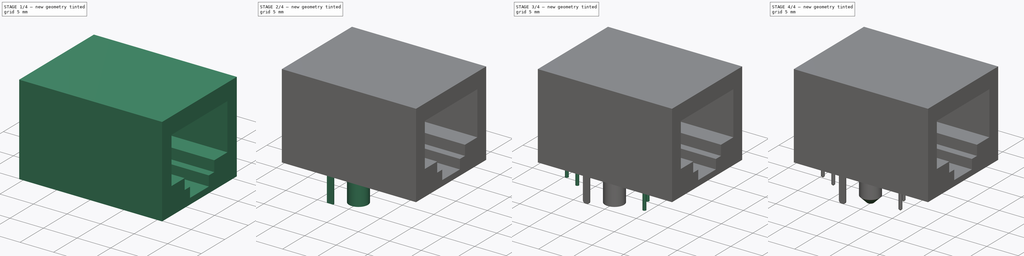
[diagram: build sequence overview — one tinted view per stage of 4, left to right]
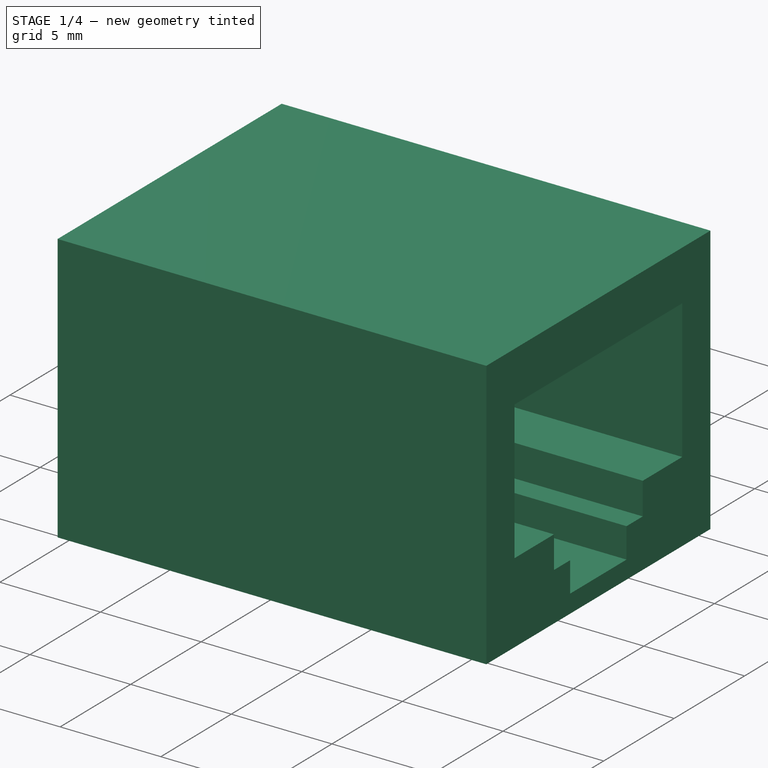
[diagram: stage 1 of 4 — iso view after this stage's code; geometry added in this stage tinted green]
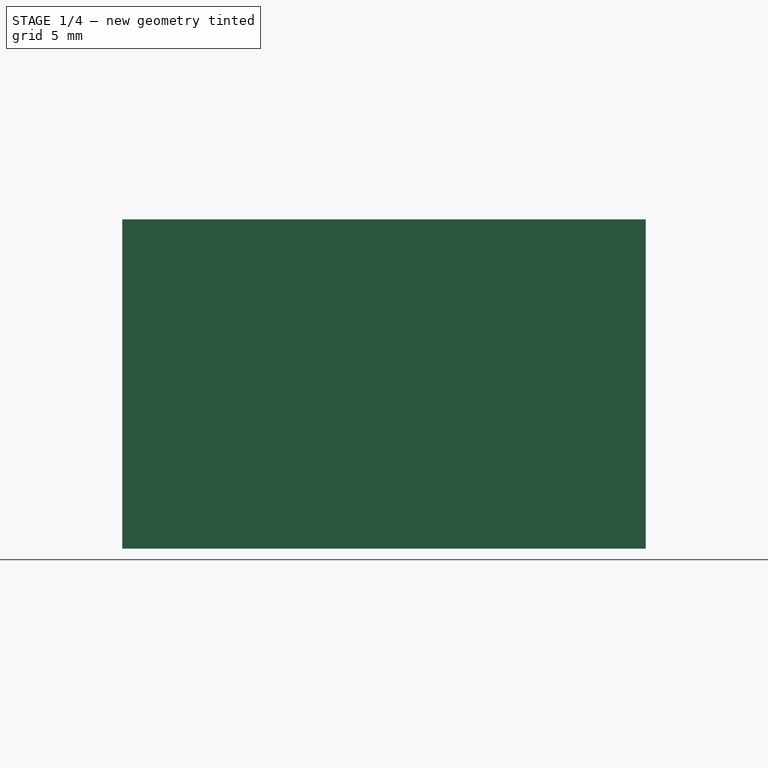
[diagram: stage 1 of 4 — front view after this stage's code; geometry added in this stage tinted green]
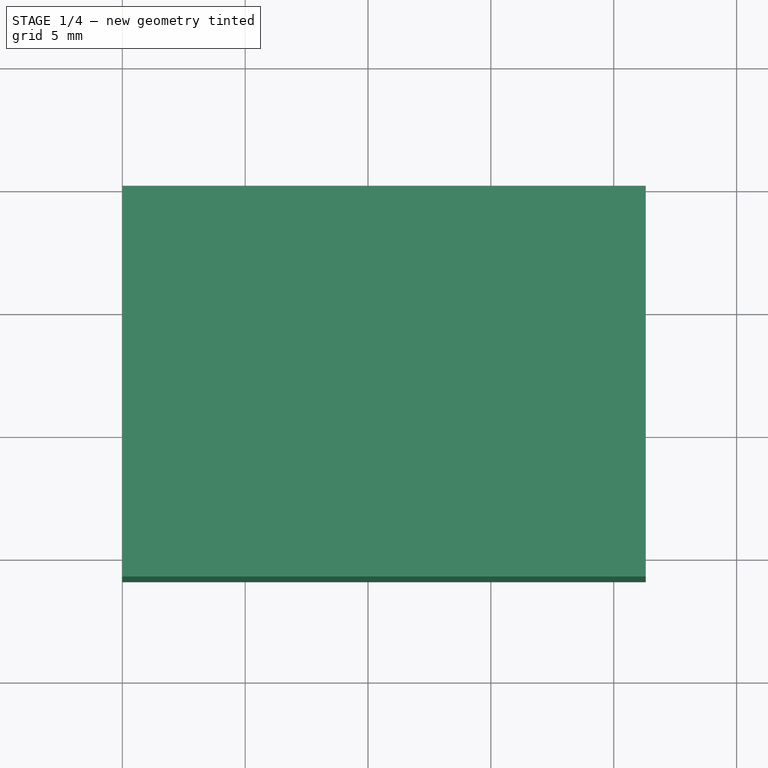
[diagram: stage 1 of 4 — top view after this stage's code; geometry added in this stage tinted green]
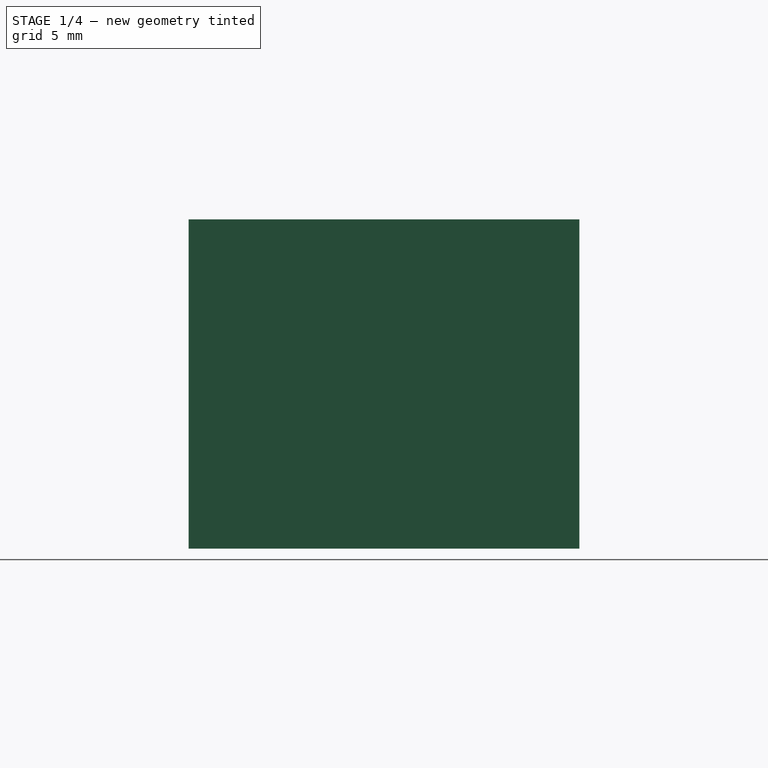
[diagram: stage 1 of 4 — right view after this stage's code; geometry added in this stage tinted green]
FCSTD DOCUMENT  (FreeCAD 0.14R3702 (Git))
Label: rj45-ethernet-PCB-with-leds
License: CC-BY 3.0
LicenseURL: http://creativecommons.org/licenses/by/3.0/
objects: Sketcher::SketchObject×7, PartDesign::Pad×6, PartDesign::Chamfer×2, PartDesign::Pocket×1, PartDesign::Fillet×1
note: 24 computed .brp shape members not serialized (recipe doc carries the construction recipe); baked Part::Feature solids carry a one-line shape summary decoded from their .brp

FEATURE [Sketcher::SketchObject] Sketch
  sketch-geometry (4):
    g0: LineSegment StartX=0 StartY=0 StartZ=0 EndX=21.3 EndY=0 EndZ=0
    g1: LineSegment StartX=21.3 StartY=0 StartZ=0 EndX=21.3 EndY=-15.9 EndZ=0
    g2: LineSegment StartX=21.3 StartY=-15.9 StartZ=0 EndX=0 EndY=-15.9 EndZ=0
    g3: LineSegment StartX=0 StartY=-15.9 StartZ=0 EndX=0 EndY=0 EndZ=0
  constraints (11):
    c: Coincident(g0,g1)
    c: Coincident(g1,g2)
    c: Coincident(g2,g3)
    c: Coincident(g3,g0)
    c: Horizontal(g0)
    c: Horizontal(g2)
    c: Vertical(g1)
    c: Vertical(g3)
    c: Coincident(g0,g-1)
    c: DistanceX(g-1,g0) = 21.3
    c: DistanceY(g-1,g2) = -15.9
FEATURE [PartDesign::Pad] Pad  label="Body"
  Length = 13.4
  Length2 = 100
  Sketch = -> Sketch
  Type = 0
FEATURE [Sketcher::SketchObject] Sketch001
  ExternalGeometry = -> [Pad]
  Placement = pos=(21.3,0,0) rot=(0.57735,0.57735,0.57735;2.0944rad)
  Support = -> Pad [Face2]
  sketch-geometry (14):
    g0: LineSegment StartX=-13.9 StartY=10.9 StartZ=0 EndX=-2 EndY=10.9 EndZ=0
    g1: LineSegment StartX=-2 StartY=10.9 StartZ=0 EndX=-2 EndY=4 EndZ=0
    g2: LineSegment StartX=-2 StartY=4 StartZ=0 EndX=-4.8 EndY=4 EndZ=0
    g3: LineSegment StartX=-4.8 StartY=4 StartZ=0 EndX=-4.8 EndY=2.4 EndZ=0
    g4: LineSegment StartX=-4.8 StartY=2.4 StartZ=0 EndX=-5.95 EndY=2.4 EndZ=0
    g5: LineSegment StartX=-5.95 StartY=2.4 StartZ=0 EndX=-5.95 EndY=0.9 EndZ=0
    g6: LineSegment StartX=-5.95 StartY=0.9 StartZ=0 EndX=-9.95 EndY=0.9 EndZ=0
    g7: LineSegment StartX=-9.95 StartY=0.9 StartZ=0 EndX=-9.95 EndY=2.4 EndZ=0
    g8: LineSegment StartX=-9.95 StartY=2.4 StartZ=0 EndX=-11.1 EndY=2.4 EndZ=0
    g9: LineSegment StartX=-11.1 StartY=2.4 StartZ=0 EndX=-11.1 EndY=4 EndZ=0
    g10: LineSegment StartX=-11.1 StartY=4 StartZ=0 EndX=-13.9 EndY=4 EndZ=0
    g11: LineSegment StartX=-13.9 StartY=4 StartZ=0 EndX=-13.9 EndY=10.9 EndZ=0
    g12: LineSegment [constr] StartX=-2 StartY=10.9 StartZ=0 EndX=0 EndY=13.4 EndZ=0
    g13: LineSegment [constr] StartX=-13.9 StartY=10.9 StartZ=0 EndX=-15.9 EndY=13.4 EndZ=0
  constraints (40):
    c: Horizontal(g0)
    c: Coincident(g0,g1)
    c: Vertical(g1)
    c: Coincident(g1,g2)
    c: Horizontal(g2)
    c: Coincident(g2,g3)
    c: Coincident(g3,g4)
    c: Coincident(g4,g5)
    c: Vertical(g5)
    c: Coincident(g5,g6)
    c: Horizontal(g6)
    c: Coincident(g6,g7)
    c: Vertical(g7)
    c: Coincident(g7,g8)
    c: Coincident(g8,g9)
    c: Coincident(g9,g10)
    c: Horizontal(g10)
    c: Coincident(g10,g11)
    c: Coincident(g11,g0)
    c: Vertical(g11)
    c: Equal(g11,g1)
    c: Equal(g10,g2)
    c: Equal(g9,g3)
    c: Vertical(g3)
    c: Vertical(g9)
    c: Equal(g8,g4)
    c: Horizontal(g4)
    c: Equal(g7,g5)
    c: DistanceY(g0,g10) = -6.9
    c: DistanceX(g0,g0) = 11.9
    c: DistanceX(g2,g9) = -6.3
    c: DistanceX(g6,g5) = 4
    c: DistanceY(g3,g0) = 8.5
    c: DistanceY(g6,g0) = 10
    c: DistanceY(g0,g-3) = 2.5
    c: Coincident(g12,g0)
    c: Coincident(g12,g-3)
    c: Coincident(g13,g0)
    c: Coincident(g13,g-3)
    c: Equal(g12,g13)
FEATURE [PartDesign::Pocket] Pocket  label="inside"
  Length = 11.5
  Sketch = -> Sketch001
  Type = 0
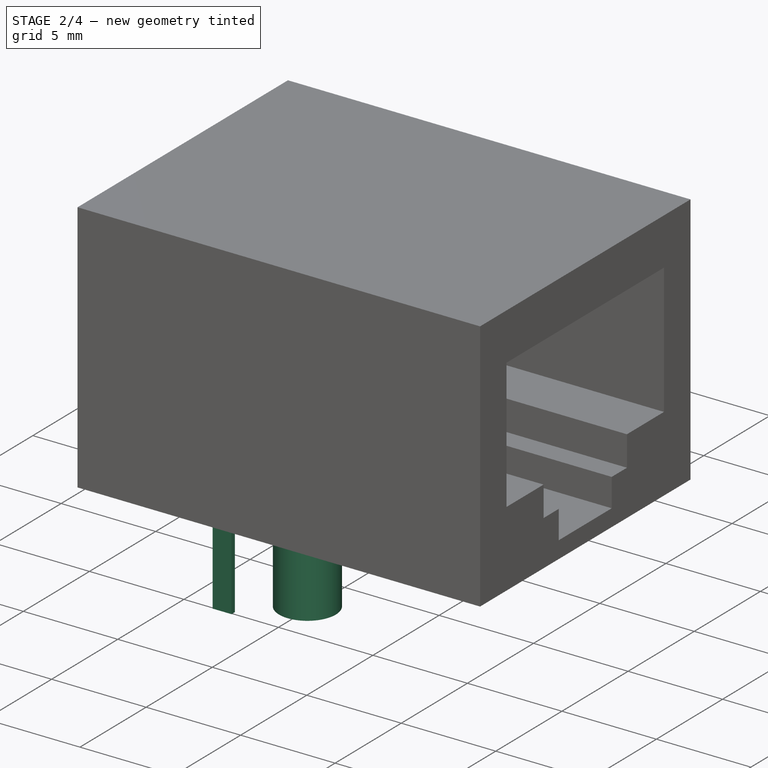
[diagram: stage 2 of 4 — iso view after this stage's code; geometry added in this stage tinted green]
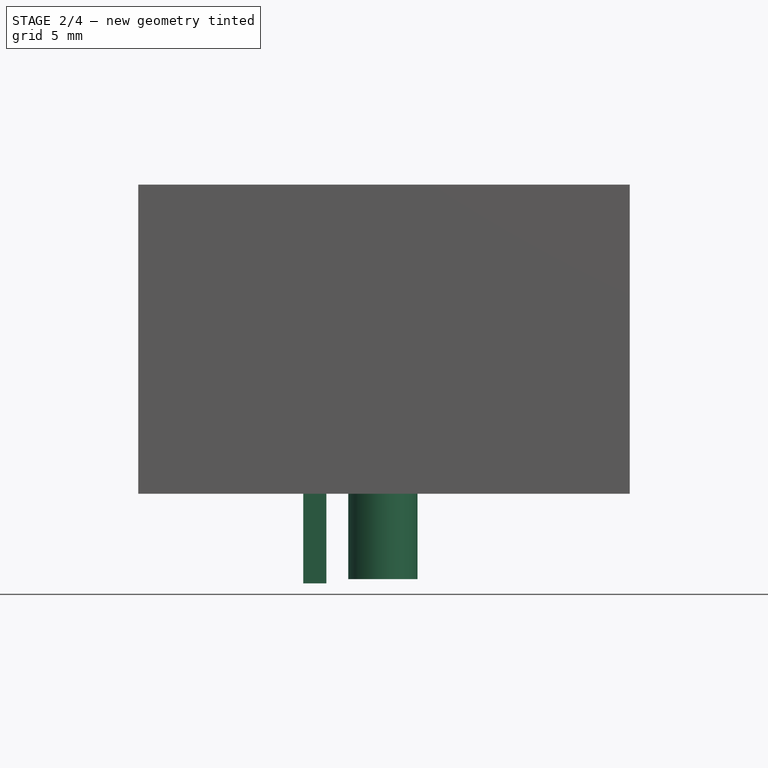
[diagram: stage 2 of 4 — front view after this stage's code; geometry added in this stage tinted green]
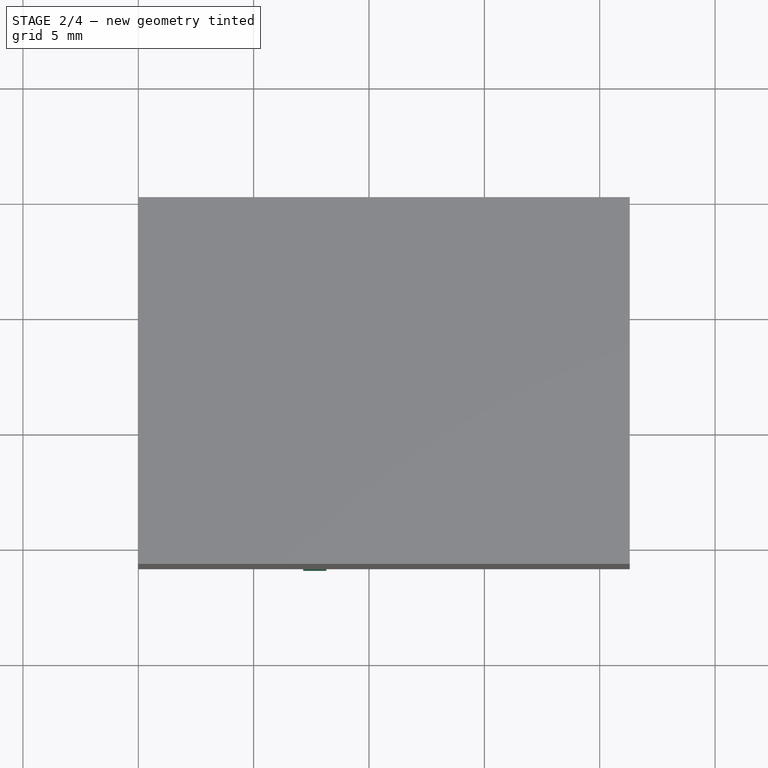
[diagram: stage 2 of 4 — top view after this stage's code; geometry added in this stage tinted green]
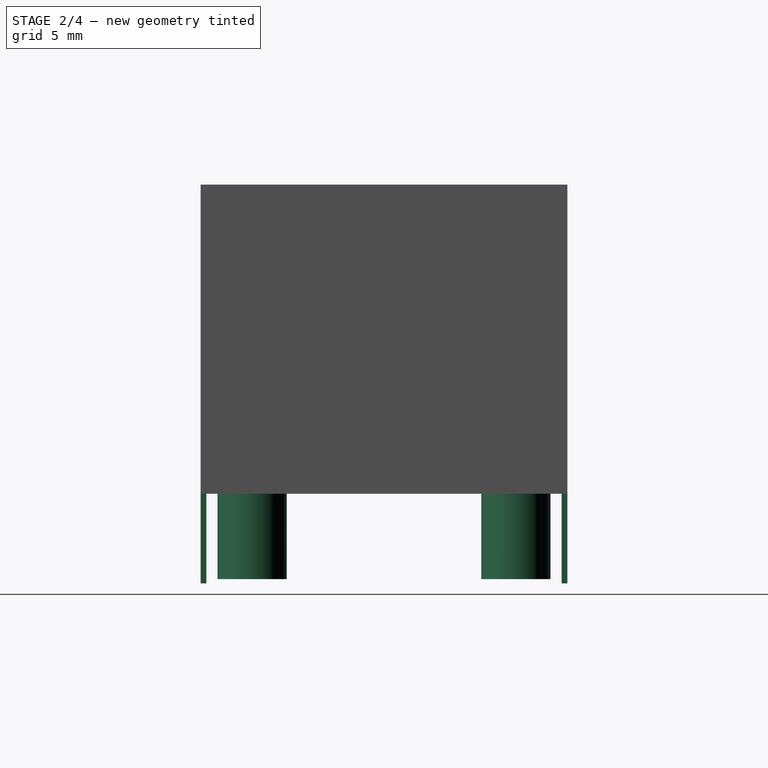
[diagram: stage 2 of 4 — right view after this stage's code; geometry added in this stage tinted green]
FEATURE [Sketcher::SketchObject] Sketch002
  ExternalGeometry = -> [Pocket]
  Placement = pos=(0,0,0) rot=(1,0,0;3.14159rad)
  Support = -> Pocket [Face4]
  sketch-geometry (2):
    g0: Circle CenterX=10.6 CenterY=13.665 CenterZ=0 NormalX=0 NormalY=0 NormalZ=1 Radius=1.5
    g1: Circle CenterX=10.6 CenterY=2.235 CenterZ=0 NormalX=0 NormalY=0 NormalZ=1 Radius=1.5
  constraints (6):
    c: Equal(g0,g1)
    c: Radius(g0) = 1.5
    c: DistanceY(g0,g1) = -11.43
    c: DistanceX(g0,g-3) = 10.7
    c: DistanceX(g1,g-3) = 10.7
    c: DistanceY(g0,g-3) = 2.235
FEATURE [PartDesign::Pad] Pad001
  Length = 3.7
  Length2 = 100
  Sketch = -> Sketch002
  Type = 0
FEATURE [Sketcher::SketchObject] Sketch003
  ExternalGeometry = -> [Pad001]
  Placement = pos=(0,-15.9,0) rot=(1,0,0;1.5708rad)
  Support = -> Pad001 [Face6]
  sketch-geometry (6):
    g0: LineSegment StartX=8.15 StartY=0 StartZ=0 EndX=7.15 EndY=0 EndZ=0
    g1: LineSegment StartX=7.15 StartY=0 StartZ=0 EndX=7.15 EndY=-3.88277 EndZ=0
    g2: LineSegment StartX=7.15 StartY=-3.88277 StartZ=0 EndX=8.15 EndY=-3.88277 EndZ=0
    g3: LineSegment StartX=8.15 StartY=-3.88277 StartZ=0 EndX=8.15 EndY=0 EndZ=0
    g4: LineSegment [constr] StartX=8.15 StartY=0 StartZ=0 EndX=7.15 EndY=-3.88277 EndZ=0
    g5: GeomPoint [constr] X=7.65 Y=-1.94139 Z=0
  constraints (15):
    c: Coincident(g0,g1)
    c: Coincident(g1,g2)
    c: Coincident(g2,g3)
    c: Coincident(g3,g0)
    c: Horizontal(g0)
    c: Horizontal(g2)
    c: Vertical(g1)
    c: Vertical(g3)
    c: PointOnObject(g0,g-1)
    c: Coincident(g4,g0)
    c: Coincident(g4,g1)
    c: PointOnObject(g5,g4)
    c: Symmetric(g0,g1,g5)
    c: DistanceX(g1,g2) = 1
    c: DistanceX(g-1,g5) = 7.65
FEATURE [PartDesign::Pad] Pad002
  Length = 0.25
  Length2 = 100
  Reversed = true
  Sketch = -> Sketch003
  Type = 0
FEATURE [Sketcher::SketchObject] Sketch004
  ExternalGeometry = -> [Pad002]
  Placement = pos=(0,0,0) rot=(0,0.707107,0.707107;3.14159rad)
  Support = -> Pad002 [Face1]
  sketch-geometry (4):
    g0: LineSegment StartX=-8.15 StartY=0 StartZ=0 EndX=-7.15 EndY=0 EndZ=0
    g1: LineSegment StartX=-7.15 StartY=0 StartZ=0 EndX=-7.15 EndY=-3.88277 EndZ=0
    g2: LineSegment StartX=-7.15 StartY=-3.88277 StartZ=0 EndX=-8.15 EndY=-3.88277 EndZ=0
    g3: LineSegment StartX=-8.15 StartY=-3.88277 StartZ=0 EndX=-8.15 EndY=0 EndZ=0
  constraints (10):
    c: Coincident(g0,g1)
    c: Coincident(g1,g2)
    c: Coincident(g2,g3)
    c: Coincident(g3,g0)
    c: Horizontal(g0)
    c: Horizontal(g2)
    c: Vertical(g1)
    c: Vertical(g3)
    c: Coincident(g1,g-3)
    c: DistanceX(g2,g1) = 1
FEATURE [PartDesign::Pad] Pad003
  Length = 0.25
  Length2 = 100
  Reversed = true
  Sketch = -> Sketch004
  Type = 0
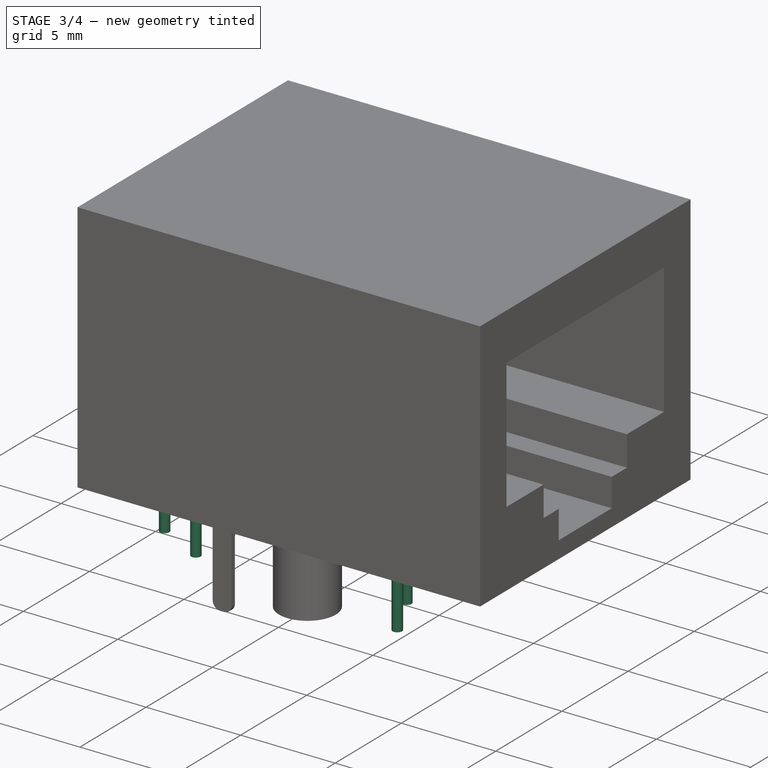
[diagram: stage 3 of 4 — iso view after this stage's code; geometry added in this stage tinted green]
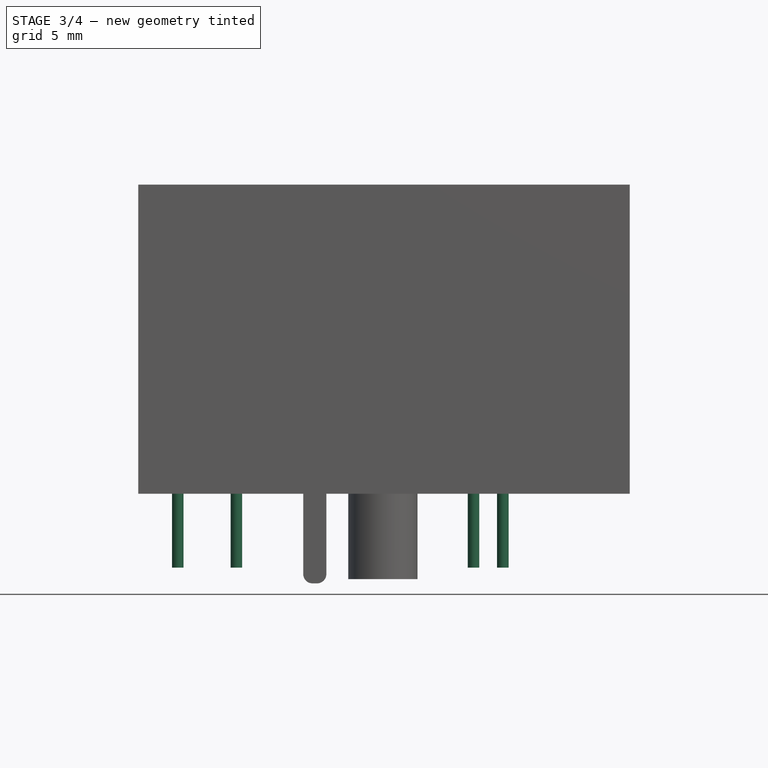
[diagram: stage 3 of 4 — front view after this stage's code; geometry added in this stage tinted green]
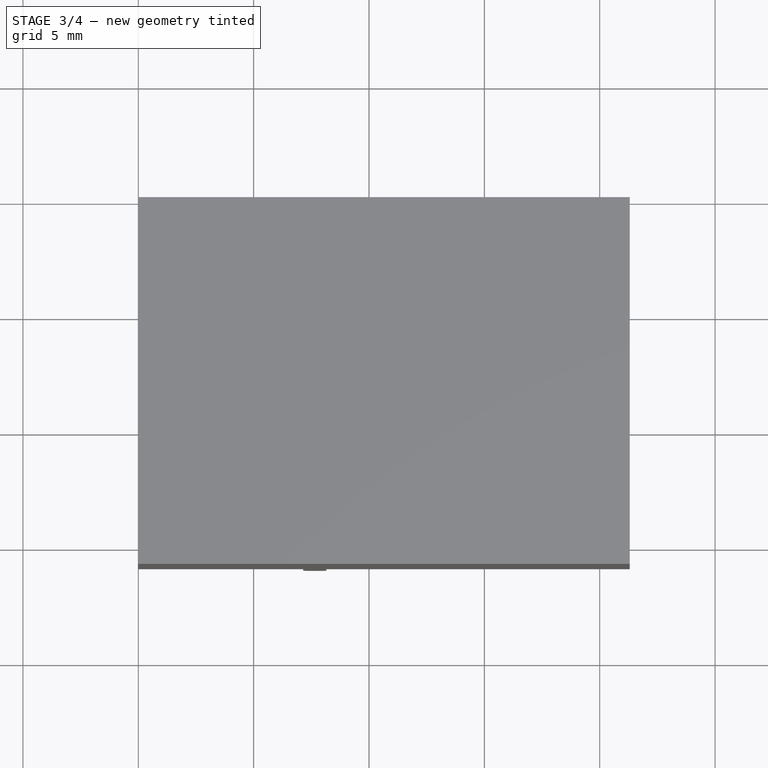
[diagram: stage 3 of 4 — top view after this stage's code; geometry added in this stage tinted green]
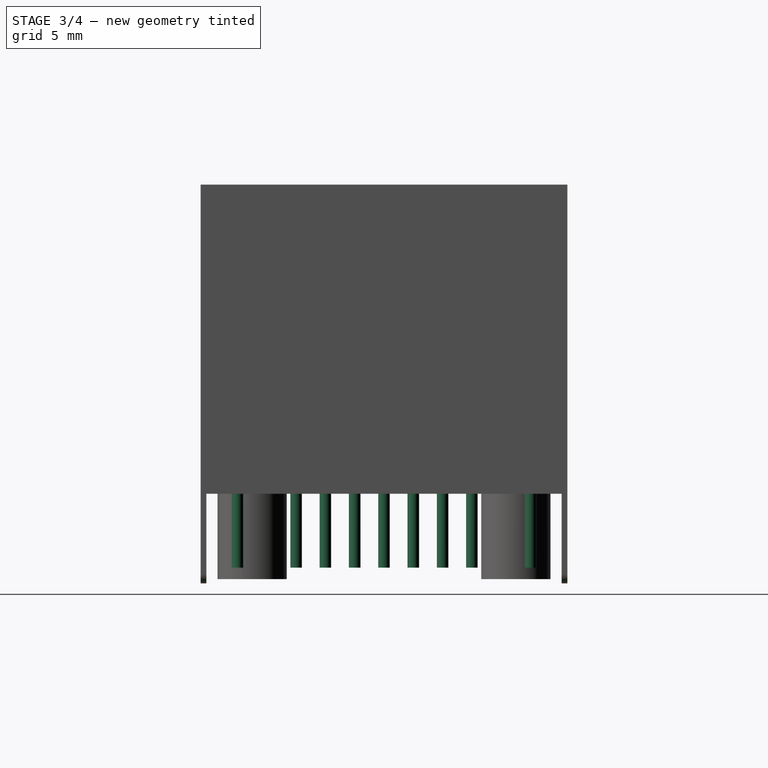
[diagram: stage 3 of 4 — right view after this stage's code; geometry added in this stage tinted green]
FEATURE [Sketcher::SketchObject] Sketch005
  ExternalGeometry = -> [Pad003]
  Placement = pos=(0,0,0) rot=(1,0,0;3.14159rad)
  Support = -> Pad003 [Face4]
  sketch-geometry (12):
    g0: Circle CenterX=4.25 CenterY=13.03 CenterZ=0 NormalX=0 NormalY=0 NormalZ=1 Radius=0.25
    g1: Circle CenterX=4.25 CenterY=10.49 CenterZ=0 NormalX=0 NormalY=0 NormalZ=1 Radius=0.25
    g2: Circle CenterX=4.25 CenterY=7.95 CenterZ=0 NormalX=0 NormalY=0 NormalZ=1 Radius=0.25
    g3: Circle CenterX=4.25 CenterY=5.41 CenterZ=0 NormalX=0 NormalY=0 NormalZ=1 Radius=0.25
    g4: Circle CenterX=1.71 CenterY=11.76 CenterZ=0 NormalX=0 NormalY=0 NormalZ=1 Radius=0.25
    g5: Circle CenterX=1.71 CenterY=6.68 CenterZ=0 NormalX=0 NormalY=0 NormalZ=1 Radius=0.25
    g6: Circle CenterX=1.71 CenterY=9.22 CenterZ=0 NormalX=0 NormalY=0 NormalZ=1 Radius=0.25
    g7: Circle CenterX=1.71 CenterY=4.14 CenterZ=0 NormalX=0 NormalY=0 NormalZ=1 Radius=0.25
    g8: LineSegment [constr] StartX=4.25 StartY=13.03 StartZ=0 EndX=4.25 EndY=5.41 EndZ=0
    g9: LineSegment [constr] StartX=1.71 StartY=11.76 StartZ=0 EndX=1.71 EndY=4.14 EndZ=0
    g10: GeomPoint [constr] X=1.71 Y=1 Z=0
    g11: GeomPoint [constr] X=1.71 Y=7.95 Z=0
  constraints (32):
    c: Equal(g0,g1)
    c: Equal(g4,g0)
    c: Equal(g5,g1)
    c: Equal(g5,g6)
    c: Equal(g6,g2)
    c: Equal(g2,g3)
    c: Equal(g3,g7)
    c: Vertical(g9)
    c: Vertical(g8)
    c: Coincident(g8,g0)
    c: Coincident(g3,g8)
    c: Coincident(g9,g7)
    c: Coincident(g4,g9)
    c: Equal(g9,g8)
    c: DistanceX(g7,g3) = 2.54
    c: PointOnObject(g6,g9)
    c: PointOnObject(g5,g9)
    c: PointOnObject(g1,g8)
    c: PointOnObject(g2,g8)
    c: DistanceY(g0,g4) = -1.27
    c: DistanceY(g4,g6) = -2.54
    c: DistanceY(g7,g0) = 8.89
    c: DistanceY(g7,g5) = 2.54
    c: DistanceY(g3,g2) = 2.54
    c: DistanceY(g1,g0) = 2.54
    c: PointOnObject(g10,g9)
    c: DistanceY(g-1,g10) = 1
    c: PointOnObject(g11,g9)
    c: Symmetric(g7,g4,g11)
    c: DistanceY(g-1,g11) = 7.95
    c: DistanceX(g7,g-3) = 19.59
    c: Radius(g4) = 0.25
FEATURE [PartDesign::Pad] Pad004  label="data-pins"
  Length = 3.2
  Length2 = 100
  Sketch = -> Sketch005
  Type = 0
FEATURE [Sketcher::SketchObject] Sketch006
  ExternalGeometry = -> [Pad004]
  Placement = pos=(0,0,0) rot=(1,0,0;3.14159rad)
  Support = -> Pad004 [Face4]
  sketch-geometry (4):
    g0: Circle CenterX=15.8 CenterY=14.3 CenterZ=0 NormalX=0 NormalY=0 NormalZ=1 Radius=0.25
    g1: Circle CenterX=14.53 CenterY=11.76 CenterZ=0 NormalX=0 NormalY=0 NormalZ=1 Radius=0.25
    g2: Circle CenterX=15.8 CenterY=4.14 CenterZ=0 NormalX=0 NormalY=0 NormalZ=1 Radius=0.25
    g3: Circle CenterX=14.53 CenterY=1.6 CenterZ=0 NormalX=0 NormalY=0 NormalZ=1 Radius=0.25
  constraints (12):
    c: Equal(g1,g0)
    c: Equal(g3,g2)
    c: Radius(g0) = 0.25
    c: Radius(g2) = 0.25
    c: DistanceY(g1,g0) = 2.54
    c: DistanceX(g0,g1) = -1.27
    c: DistanceY(g3,g2) = 2.54
    c: DistanceX(g3,g2) = 1.27
    c: DistanceX(g0,g-3) = 5.5
    c: DistanceX(g2,g-3) = 5.5
    c: DistanceY(g0,g3) = -12.7
    c: DistanceY(g0,g-3) = 1.6
FEATURE [PartDesign::Pad] Pad005  label="led-pins"
  Length = 3.2
  Length2 = 100
  Sketch = -> Sketch006
  Type = 0
FEATURE [PartDesign::Fillet] Fillet
  Base = -> Pad005 [Edge64,Edge60,Edge61,Edge56]
  Radius = 0.4
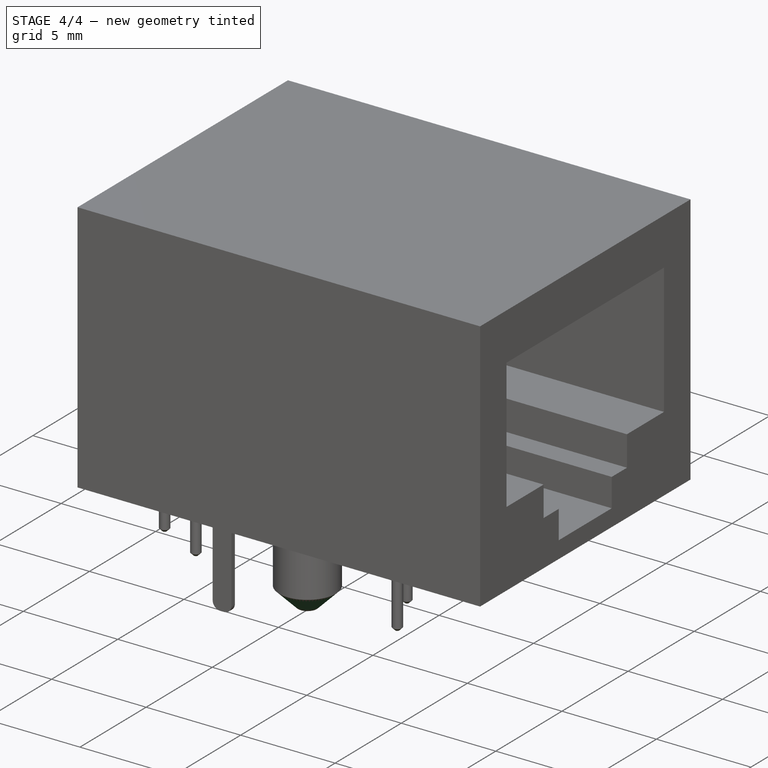
[diagram: stage 4 of 4 — iso view after this stage's code; geometry added in this stage tinted green]
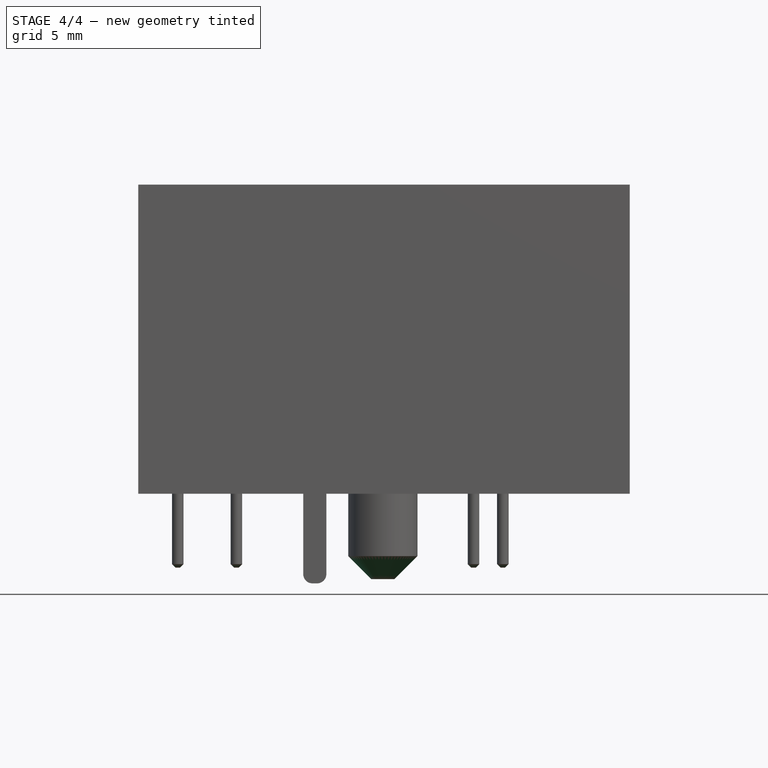
[diagram: stage 4 of 4 — front view after this stage's code; geometry added in this stage tinted green]
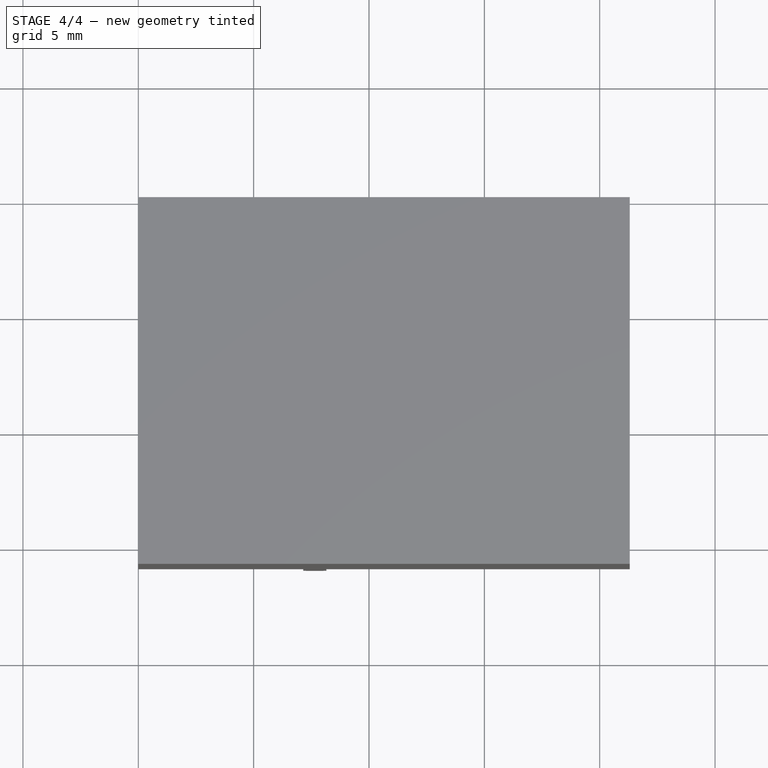
[diagram: stage 4 of 4 — top view after this stage's code; geometry added in this stage tinted green]
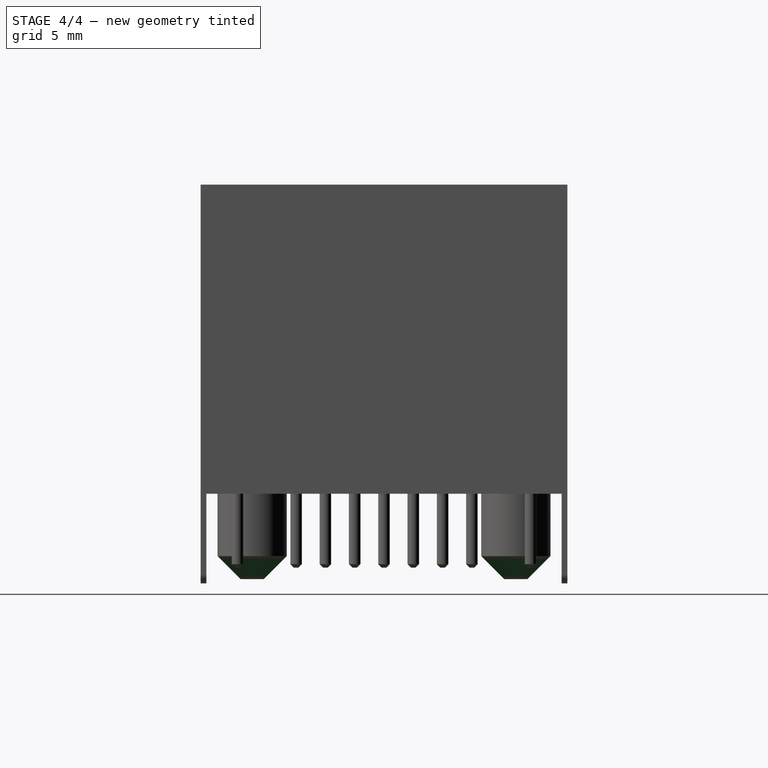
[diagram: stage 4 of 4 — right view after this stage's code; geometry added in this stage tinted green]
FEATURE [PartDesign::Chamfer] Chamfer
  Base = -> Fillet [Edge75,Edge73]
  Size = 1
FEATURE [PartDesign::Chamfer] Chamfer001
  Base = -> Chamfer [Edge86,Edge80,Edge88,Edge82,Edge74,Edge84,Edge78,Edge76,Edge94,Edge92,Edge96,Edge90]
  Size = 0.15
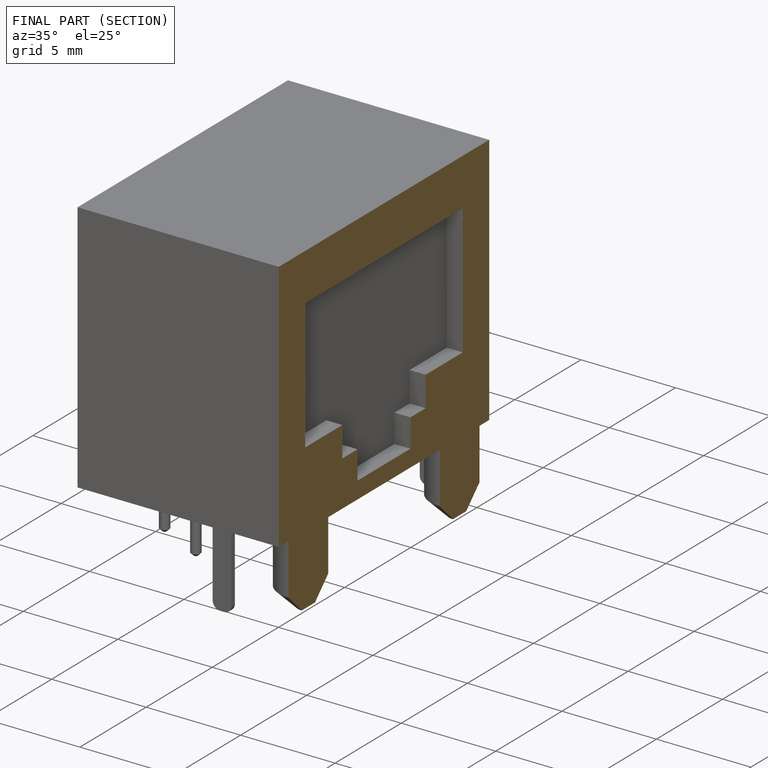
[diagram: finished part — half-section view (interior)]
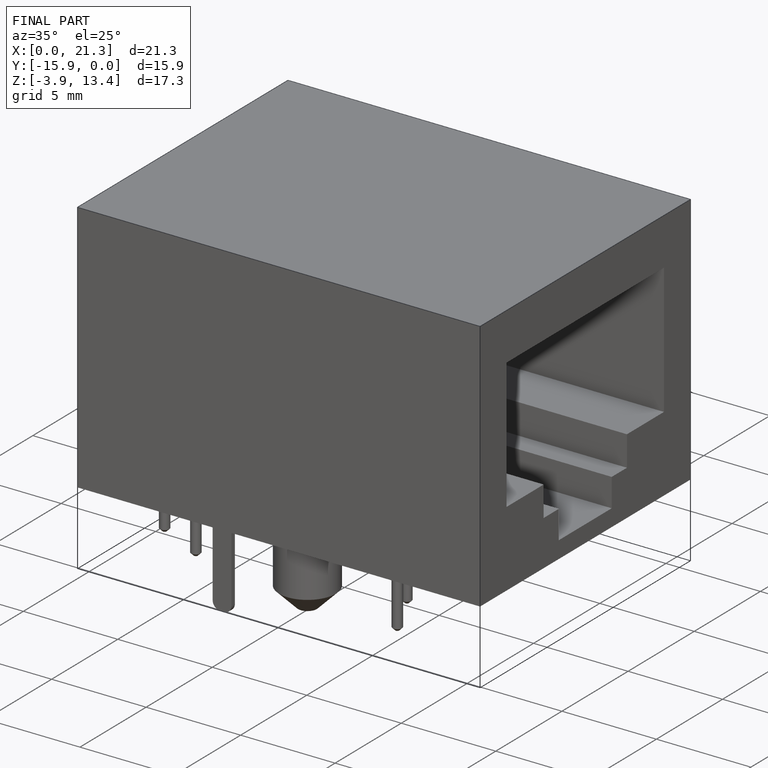
[diagram: finished part — iso view with bounding-box wireframe]
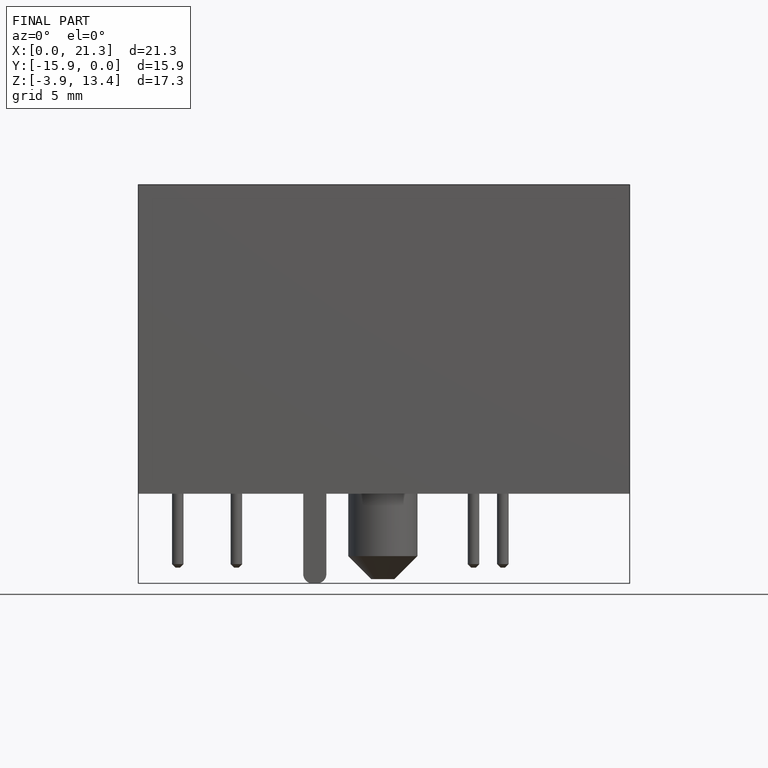
[diagram: finished part — front view with bounding-box wireframe]
